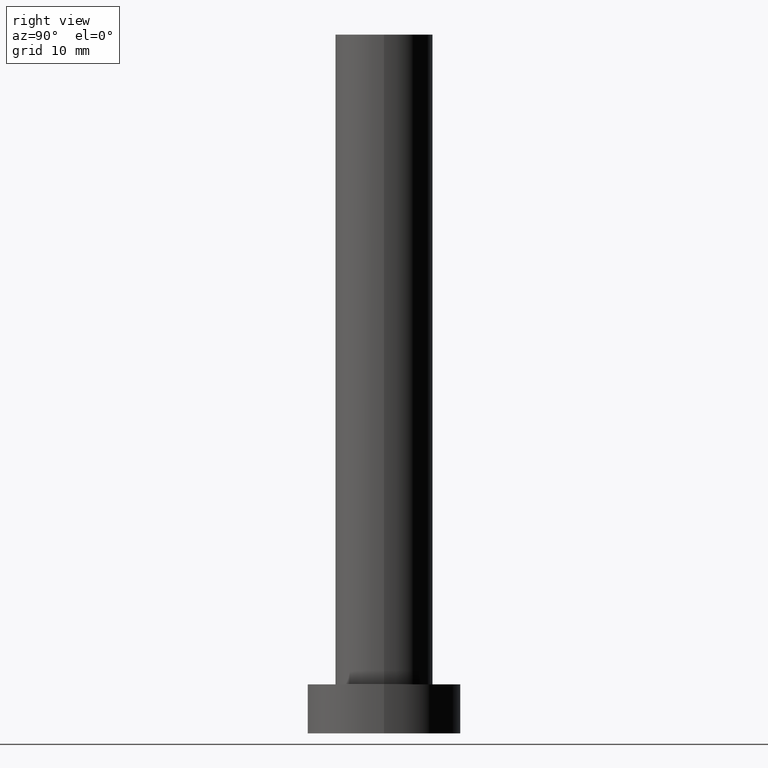
[diagram: clean part render]
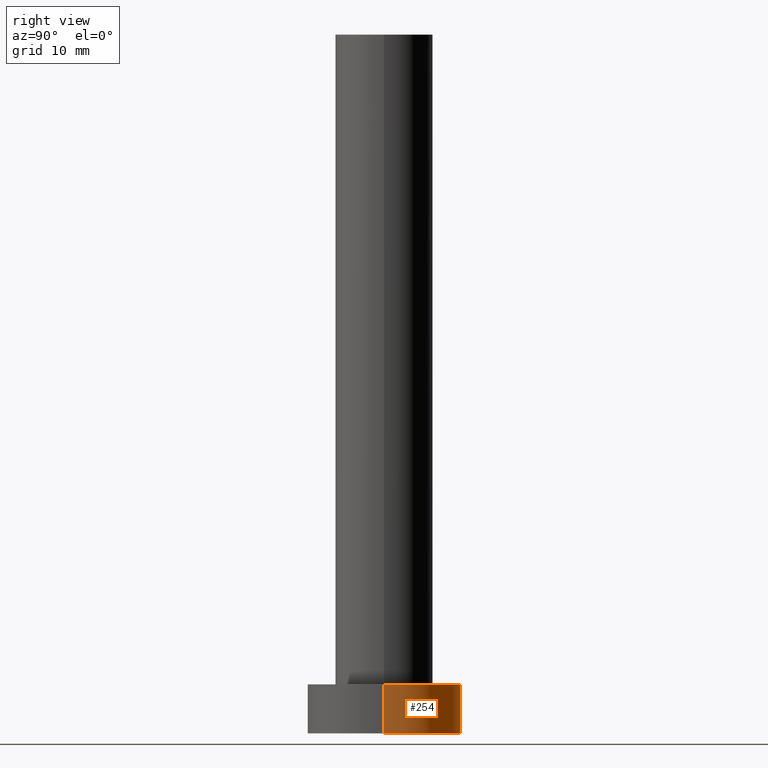
[diagram: same view with one face highlighted and labeled with its STEP entity id]
A machine part, right view. The second image highlights one B-rep face of the part: STEP entity #254.
In plain terms, the highlighted cylindrical surface (partial cylindrical patch) has radius 11 mm, axis along (-0, -0, -1).
Its self-contained STEP definition (entity closure, byte-faithful):
#2 = EDGE_CURVE ( 'NONE', #200, #176, #98, .T. ) ;
#9 = CARTESIAN_POINT ( 'NONE',  ( -11.00000000000000000, 0.000000000000000000, 0.000000000000000000 ) ) ;
#12 = DIRECTION ( 'NONE',  ( -0.000000000000000000, -0.000000000000000000, -1.000000000000000000 ) ) ;
#13 = DIRECTION ( 'NONE',  ( -0.000000000000000000, -0.000000000000000000, -1.000000000000000000 ) ) ;
#15 = CARTESIAN_POINT ( 'NONE',  ( 11.00000000000000000, 1.347111479062088405E-15, 7.000000000000000000 ) ) ;
#20 = AXIS2_PLACEMENT_3D ( 'NONE', #124, #40, #244 ) ;
#33 = CYLINDRICAL_SURFACE ( 'NONE', #94, 11.00000000000000000 ) ;
#40 = DIRECTION ( 'NONE',  ( 0.000000000000000000, 0.000000000000000000, 1.000000000000000000 ) ) ;
#48 = ORIENTED_EDGE ( 'NONE', *, *, #178, .F. ) ;
#51 = FACE_OUTER_BOUND ( 'NONE', #57, .T. ) ;
#57 = EDGE_LOOP ( 'NONE', ( #48, #192, #72, #204 ) ) ;
#62 = CIRCLE ( 'NONE', #134, 11.00000000000000000 ) ;
#72 = ORIENTED_EDGE ( 'NONE', *, *, #2, .T. ) ;
#76 = VERTEX_POINT ( 'NONE', #206 ) ;
#84 = DIRECTION ( 'NONE',  ( 0.000000000000000000, 0.000000000000000000, 1.000000000000000000 ) ) ;
#94 = AXIS2_PLACEMENT_3D ( 'NONE', #108, #12, #248 ) ;
#98 = CIRCLE ( 'NONE', #20, 11.00000000000000000 ) ;
#106 = CARTESIAN_POINT ( 'NONE',  ( 0.000000000000000000, 0.000000000000000000, 7.000000000000000000 ) ) ;
#108 = CARTESIAN_POINT ( 'NONE',  ( 0.000000000000000000, 0.000000000000000000, 7.000000000000000000 ) ) ;
#124 = CARTESIAN_POINT ( 'NONE',  ( 0.000000000000000000, 0.000000000000000000, 0.000000000000000000 ) ) ;
#133 = LINE ( 'NONE', #228, #217 ) ;
#134 = AXIS2_PLACEMENT_3D ( 'NONE', #106, #84, #167 ) ;
#146 = LINE ( 'NONE', #15, #201 ) ;
#149 = DIRECTION ( 'NONE',  ( -0.000000000000000000, -0.000000000000000000, -1.000000000000000000 ) ) ;
#164 = CARTESIAN_POINT ( 'NONE',  ( 11.00000000000000000, 1.347111479062088405E-15, 0.000000000000000000 ) ) ;
#167 = DIRECTION ( 'NONE',  ( 1.000000000000000000, 0.000000000000000000, 0.000000000000000000 ) ) ;
#176 = VERTEX_POINT ( 'NONE', #9 ) ;
#178 = EDGE_CURVE ( 'NONE', #76, #232, #62, .T. ) ;
#192 = ORIENTED_EDGE ( 'NONE', *, *, #239, .T. ) ;
#197 = EDGE_CURVE ( 'NONE', #232, #176, #133, .T. ) ;
#200 = VERTEX_POINT ( 'NONE', #164 ) ;
#201 = VECTOR ( 'NONE', #149, 1000.000000000000000 ) ;
#204 = ORIENTED_EDGE ( 'NONE', *, *, #197, .F. ) ;
#206 = CARTESIAN_POINT ( 'NONE',  ( 11.00000000000000000, 1.347111479062088405E-15, 7.000000000000000000 ) ) ;
#217 = VECTOR ( 'NONE', #13, 1000.000000000000000 ) ;
#228 = CARTESIAN_POINT ( 'NONE',  ( -11.00000000000000000, 0.000000000000000000, 7.000000000000000000 ) ) ;
#232 = VERTEX_POINT ( 'NONE', #245 ) ;
#239 = EDGE_CURVE ( 'NONE', #76, #200, #146, .T. ) ;
#244 = DIRECTION ( 'NONE',  ( 1.000000000000000000, 0.000000000000000000, 0.000000000000000000 ) ) ;
#245 = CARTESIAN_POINT ( 'NONE',  ( -11.00000000000000000, 0.000000000000000000, 7.000000000000000000 ) ) ;
#248 = DIRECTION ( 'NONE',  ( -1.000000000000000000, 0.000000000000000000, 0.000000000000000000 ) ) ;
#254 = ADVANCED_FACE ( 'NONE', ( #51 ), #33, .T. ) ;